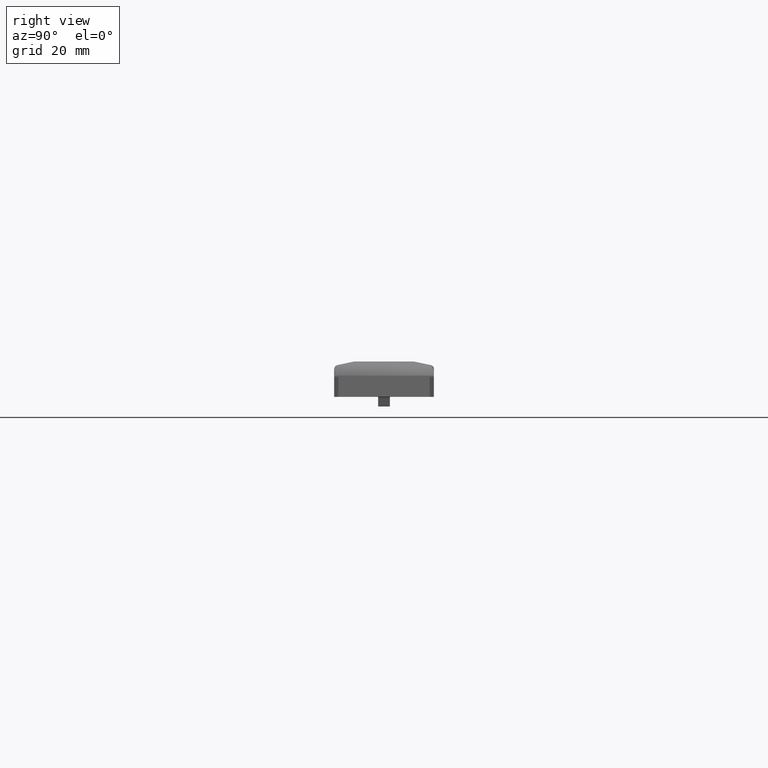
[diagram: clean part render]
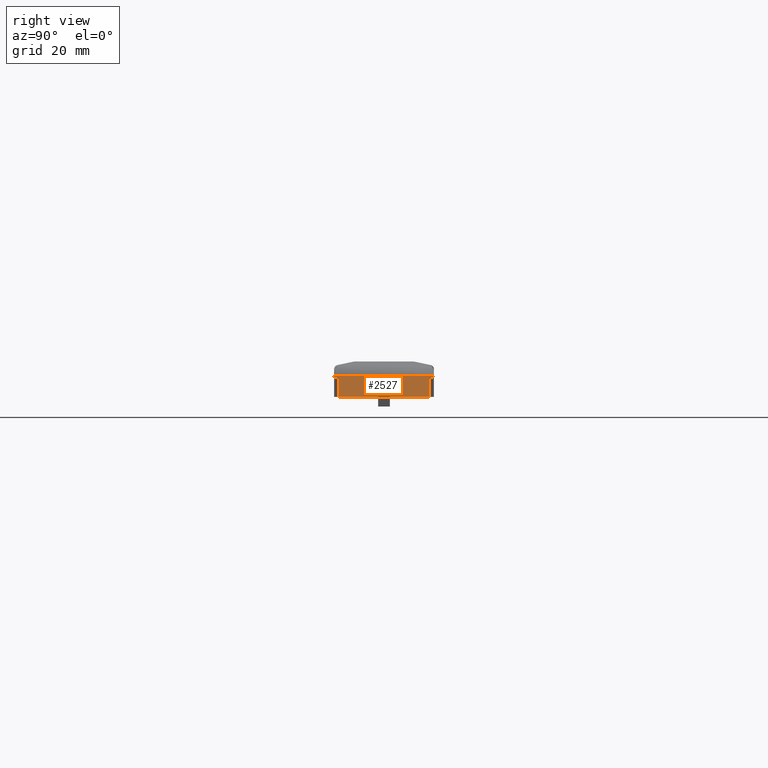
[diagram: same view with one face highlighted and labeled with its STEP entity id]
A machine part, right view. The second image highlights one B-rep face of the part: STEP entity #2527.
In plain terms, the highlighted face is a freeform B-spline surface patch.
Its self-contained STEP definition (entity closure, byte-faithful):
#1843=CARTESIAN_POINT('',(86.0,12.0,4.808090310442620));
#1844=VERTEX_POINT('',#1843);
#1845=CARTESIAN_POINT('',(86.0,10.999999999999799,4.808090310442600));
#1846=VERTEX_POINT('',#1845);
#1847=CARTESIAN_POINT('',(86.0,12.0,4.808090310442620));
#1848=CARTESIAN_POINT('',(86.0,10.999999999999799,4.808090310442600));
#1849=QUASI_UNIFORM_CURVE('',1,(#1847,#1848),.UNSPECIFIED.,.F.,.U.);
#1850=EDGE_CURVE('',#1844,#1846,#1849,.T.);
#1879=CARTESIAN_POINT('',(87.0,10.999999999999799,0.0));
#1880=VERTEX_POINT('',#1879);
#1881=CARTESIAN_POINT('',(86.0,10.999999999999799,4.808090310442600));
#1882=CARTESIAN_POINT('',(87.0,10.999999999999799,0.0));
#1883=QUASI_UNIFORM_CURVE('',1,(#1881,#1882),.UNSPECIFIED.,.F.,.U.);
#1884=EDGE_CURVE('',#1846,#1880,#1883,.T.);
#1900=CARTESIAN_POINT('',(86.0,-10.999999999999799,4.808090310442620));
#1901=VERTEX_POINT('',#1900);
#1902=CARTESIAN_POINT('',(86.0,-11.999999999999799,4.808090310442600));
#1903=VERTEX_POINT('',#1902);
#1904=CARTESIAN_POINT('',(86.0,-10.999999999999799,4.808090310442620));
#1905=CARTESIAN_POINT('',(86.0,-11.999999999999799,4.808090310442600));
#1906=QUASI_UNIFORM_CURVE('',1,(#1904,#1905),.UNSPECIFIED.,.F.,.U.);
#1907=EDGE_CURVE('',#1901,#1903,#1906,.T.);
#1936=CARTESIAN_POINT('',(87.0,-10.999999999999799,0.0));
#1937=VERTEX_POINT('',#1936);
#1938=CARTESIAN_POINT('',(87.0,-10.999999999999799,0.0));
#1939=CARTESIAN_POINT('',(86.0,-10.999999999999799,4.808090310442620));
#1940=QUASI_UNIFORM_CURVE('',1,(#1938,#1939),.UNSPECIFIED.,.F.,.U.);
#1941=EDGE_CURVE('',#1937,#1901,#1940,.T.);
#2423=CARTESIAN_POINT('',(85.936908919406093,12.0,5.111437923721200));
#2424=VERTEX_POINT('',#2423);
#2445=CARTESIAN_POINT('',(85.936908919406093,-12.0,5.111437923721200));
#2446=VERTEX_POINT('',#2445);
#2460=CARTESIAN_POINT('',(85.936908919406093,12.0,5.111437923721200));
#2461=CARTESIAN_POINT('',(85.936908919406093,-12.0,5.111437923721200));
#2462=QUASI_UNIFORM_CURVE('',1,(#2460,#2461),.UNSPECIFIED.,.F.,.U.);
#2463=EDGE_CURVE('',#2424,#2446,#2462,.T.);
#2500=CARTESIAN_POINT('',(85.883807701622644,-13.198799953483340,5.366753374418733));
#2501=CARTESIAN_POINT('',(87.053101417383758,-13.198799953483340,-0.255316410393665));
#2502=CARTESIAN_POINT('',(85.883807701622644,13.198800597213509,5.366753374418733));
#2503=CARTESIAN_POINT('',(87.053101417383758,13.198800597213509,-0.255316410393665));
#2504=B_SPLINE_SURFACE_WITH_KNOTS('',1,1,((#2500,#2502),(#2501,#2503)),.UNSPECIFIED.,.F.,.F.,.U.,(2,2),(2,2),(0.0,5.742378989497206),(0.0,26.397600550696851),.UNSPECIFIED.);
#2505=ORIENTED_EDGE('',*,*,#1884,.F.);
#2506=ORIENTED_EDGE('',*,*,#1850,.F.);
#2507=CARTESIAN_POINT('',(86.0,12.0,4.808090310442620));
#2508=CARTESIAN_POINT('',(85.936908919406093,12.0,5.111437923721200));
#2509=QUASI_UNIFORM_CURVE('',1,(#2507,#2508),.UNSPECIFIED.,.F.,.U.);
#2510=EDGE_CURVE('',#1844,#2424,#2509,.T.);
#2511=ORIENTED_EDGE('',*,*,#2510,.T.);
#2512=ORIENTED_EDGE('',*,*,#2463,.T.);
#2513=CARTESIAN_POINT('',(86.0,-11.999999999999799,4.808090310442600));
#2514=CARTESIAN_POINT('',(85.936908919406093,-12.0,5.111437923721200));
#2515=QUASI_UNIFORM_CURVE('',1,(#2513,#2514),.UNSPECIFIED.,.F.,.U.);
#2516=EDGE_CURVE('',#1903,#2446,#2515,.T.);
#2517=ORIENTED_EDGE('',*,*,#2516,.F.);
#2518=ORIENTED_EDGE('',*,*,#1907,.F.);
#2519=ORIENTED_EDGE('',*,*,#1941,.F.);
#2520=CARTESIAN_POINT('',(87.0,10.999999999999799,0.0));
#2521=CARTESIAN_POINT('',(87.0,-10.999999999999799,0.0));
#2522=QUASI_UNIFORM_CURVE('',1,(#2520,#2521),.UNSPECIFIED.,.F.,.U.);
#2523=EDGE_CURVE('',#1880,#1937,#2522,.T.);
#2524=ORIENTED_EDGE('',*,*,#2523,.F.);
#2525=EDGE_LOOP('',(#2505,#2506,#2511,#2512,#2517,#2518,#2519,#2524));
#2526=FACE_OUTER_BOUND('',#2525,.T.);
#2527=ADVANCED_FACE('',(#2526),#2504,.T.);